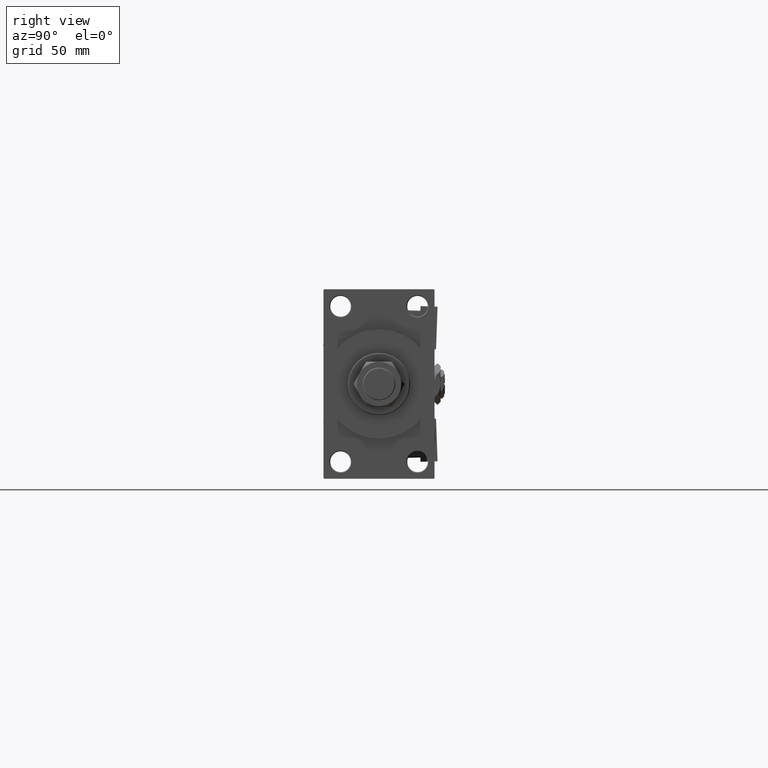
[diagram: clean part render]
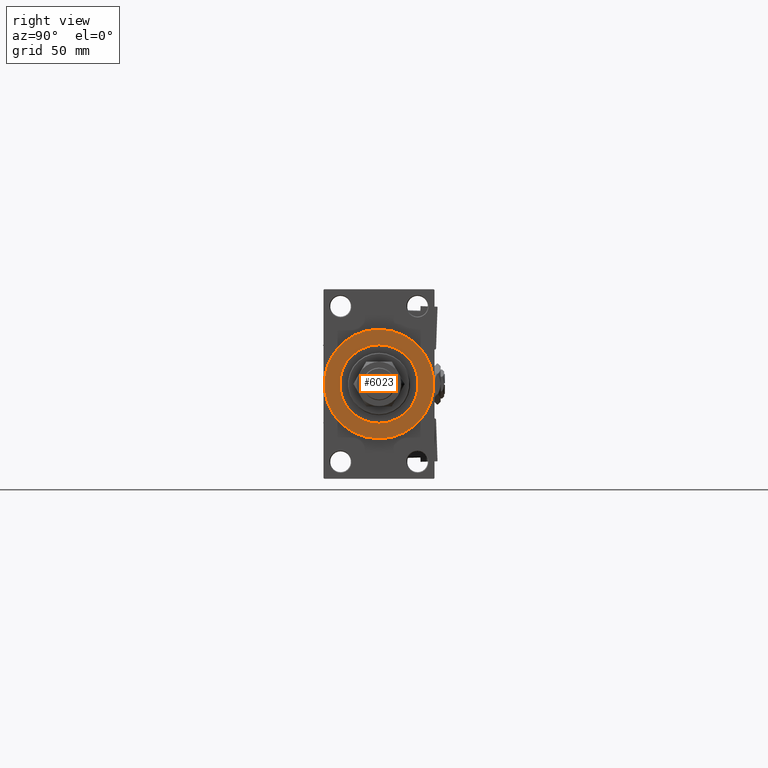
[diagram: same view with one face highlighted and labeled with its STEP entity id]
A machine part, right view. The second image highlights one B-rep face of the part: STEP entity #6023.
In plain terms, the highlighted planar face has unit normal (1, 0, 0).
Its self-contained STEP definition (entity closure, byte-faithful):
#304 = AXIS2_PLACEMENT_3D ( 'NONE', #6538, #10583, #2238 ) ;
#1941 = CARTESIAN_POINT ( 'NONE',  ( 383.9999999999999432, 0.000000000000000000, 37.00000000000000000 ) ) ;
#2238 = DIRECTION ( 'NONE',  ( 0.000000000000000000, 0.000000000000000000, -1.000000000000000000 ) ) ;
#3156 = FACE_OUTER_BOUND ( 'NONE', #26824, .T. ) ;
#4943 = EDGE_CURVE ( 'NONE', #38080, #15230, #23508, .T. ) ;
#6023 = ADVANCED_FACE ( 'NONE', ( #23328, #3156 ), #19568, .T. ) ;
#6538 = CARTESIAN_POINT ( 'NONE',  ( 383.9999999999999432, 0.000000000000000000, 0.000000000000000000 ) ) ;
#8915 = CARTESIAN_POINT ( 'NONE',  ( 383.9999999999999432, 0.000000000000000000, -26.50000000000000355 ) ) ;
#9215 = CIRCLE ( 'NONE', #39256, 37.00000000000000000 ) ;
#10583 = DIRECTION ( 'NONE',  ( 1.000000000000000000, 0.000000000000000000, 0.000000000000000000 ) ) ;
#12140 = ORIENTED_EDGE ( 'NONE', *, *, #4943, .F. ) ;
#13388 = ORIENTED_EDGE ( 'NONE', *, *, #52855, .F. ) ;
#14638 = DIRECTION ( 'NONE',  ( 0.000000000000000000, 0.000000000000000000, -1.000000000000000000 ) ) ;
#14898 = VERTEX_POINT ( 'NONE', #1941 ) ;
#15207 = EDGE_CURVE ( 'NONE', #19133, #14898, #9215, .T. ) ;
#15230 = VERTEX_POINT ( 'NONE', #29596 ) ;
#18758 = DIRECTION ( 'NONE',  ( 1.000000000000000000, 0.000000000000000000, 0.000000000000000000 ) ) ;
#19133 = VERTEX_POINT ( 'NONE', #26014 ) ;
#19568 = PLANE ( 'NONE',  #37319 ) ;
#20036 = DIRECTION ( 'NONE',  ( 0.000000000000000000, 0.000000000000000000, -1.000000000000000000 ) ) ;
#21527 = DIRECTION ( 'NONE',  ( 0.000000000000000000, 0.000000000000000000, -1.000000000000000000 ) ) ;
#22796 = CARTESIAN_POINT ( 'NONE',  ( 383.9999999999999432, 0.000000000000000000, 0.000000000000000000 ) ) ;
#23262 = CARTESIAN_POINT ( 'NONE',  ( 383.9999999999999432, 0.000000000000000000, 0.000000000000000000 ) ) ;
#23328 = FACE_BOUND ( 'NONE', #49674, .T. ) ;
#23508 = CIRCLE ( 'NONE', #304, 26.50000000000000355 ) ;
#26014 = CARTESIAN_POINT ( 'NONE',  ( 383.9999999999999432, 4.531193156845206793E-15, -37.00000000000000000 ) ) ;
#26824 = EDGE_LOOP ( 'NONE', ( #38367, #38095 ) ) ;
#27571 = AXIS2_PLACEMENT_3D ( 'NONE', #23262, #43952, #20036 ) ;
#29596 = CARTESIAN_POINT ( 'NONE',  ( 383.9999999999999432, 3.245314017740486554E-15, 26.50000000000000355 ) ) ;
#30290 = CIRCLE ( 'NONE', #50019, 37.00000000000000000 ) ;
#31660 = DIRECTION ( 'NONE',  ( 0.000000000000000000, 0.000000000000000000, -1.000000000000000000 ) ) ;
#36151 = EDGE_CURVE ( 'NONE', #14898, #19133, #30290, .T. ) ;
#37319 = AXIS2_PLACEMENT_3D ( 'NONE', #22796, #18758, #31660 ) ;
#37927 = CARTESIAN_POINT ( 'NONE',  ( 383.9999999999999432, 0.000000000000000000, 0.000000000000000000 ) ) ;
#38080 = VERTEX_POINT ( 'NONE', #8915 ) ;
#38095 = ORIENTED_EDGE ( 'NONE', *, *, #15207, .T. ) ;
#38329 = CARTESIAN_POINT ( 'NONE',  ( 383.9999999999999432, 0.000000000000000000, 0.000000000000000000 ) ) ;
#38367 = ORIENTED_EDGE ( 'NONE', *, *, #36151, .T. ) ;
#39256 = AXIS2_PLACEMENT_3D ( 'NONE', #37927, #45982, #21527 ) ;
#43952 = DIRECTION ( 'NONE',  ( 1.000000000000000000, 0.000000000000000000, 0.000000000000000000 ) ) ;
#45982 = DIRECTION ( 'NONE',  ( 1.000000000000000000, 0.000000000000000000, 0.000000000000000000 ) ) ;
#49674 = EDGE_LOOP ( 'NONE', ( #12140, #13388 ) ) ;
#50019 = AXIS2_PLACEMENT_3D ( 'NONE', #38329, #50951, #14638 ) ;
#50734 = CIRCLE ( 'NONE', #27571, 26.50000000000000355 ) ;
#50951 = DIRECTION ( 'NONE',  ( 1.000000000000000000, 0.000000000000000000, 0.000000000000000000 ) ) ;
#52855 = EDGE_CURVE ( 'NONE', #15230, #38080, #50734, .T. ) ;